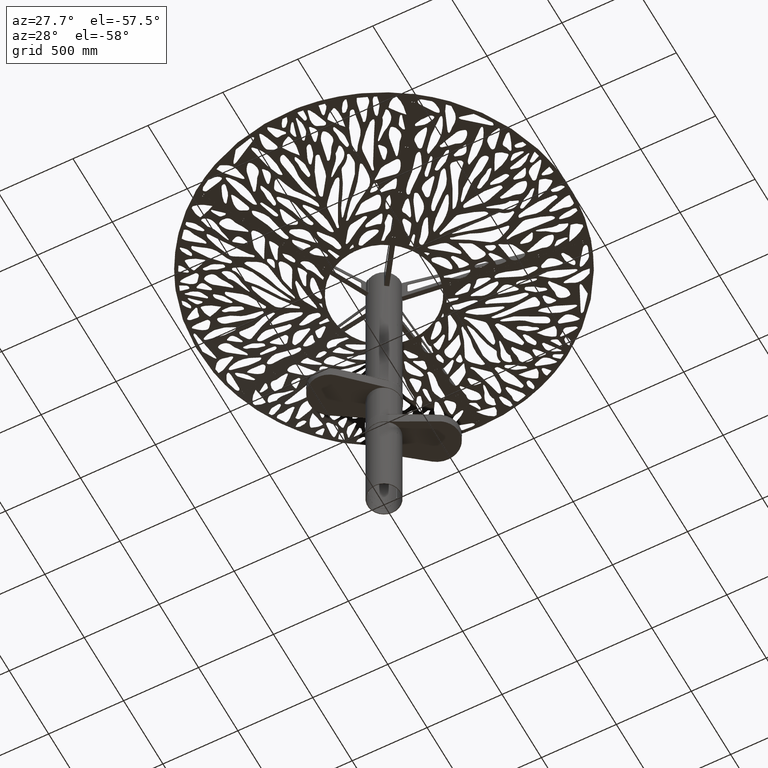
[diagram: clean part render]
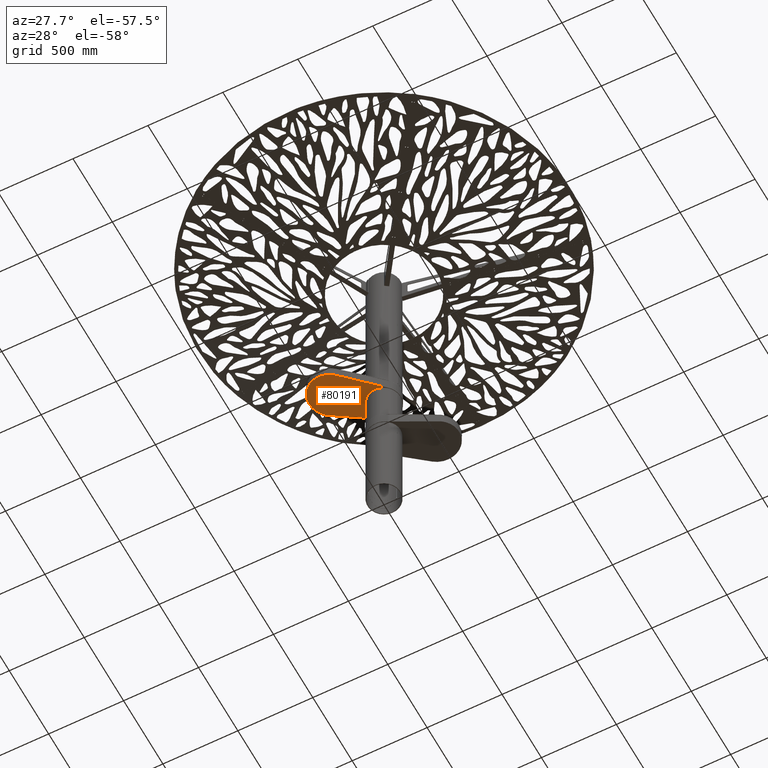
[diagram: same view with one face highlighted and labeled with its STEP entity id]
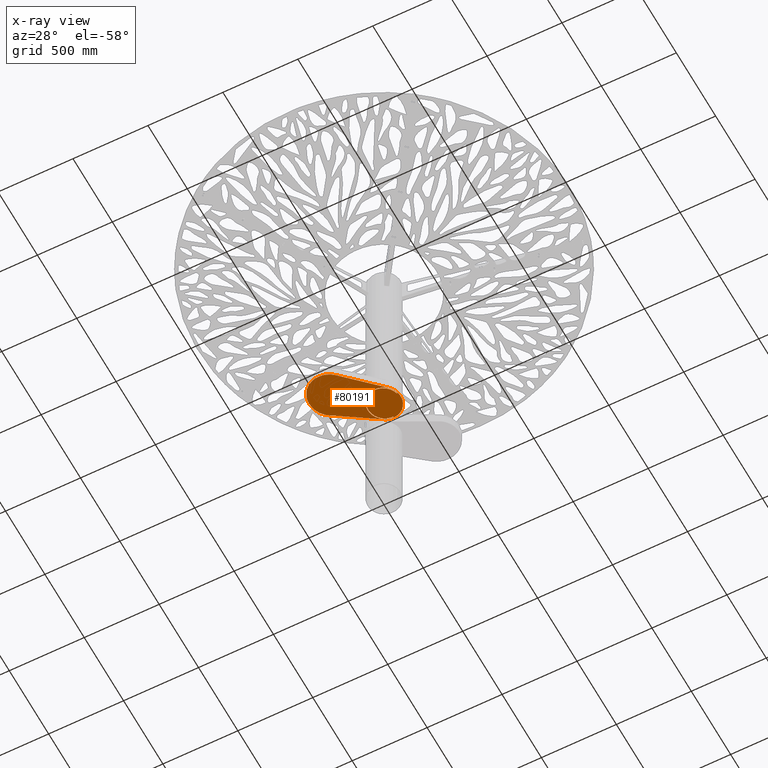
[diagram: x-ray of the same camera — body ghosted, the highlighted face saturated]
A machine part, auxiliary view. The second image highlights one B-rep face of the part: STEP entity #80191.
The next image is the same camera in x-ray: the body ghosted, the highlighted face saturated — about 0% of this face is hidden behind the body in this view.
In plain terms, the highlighted planar face has unit normal (-0.057, -0.0408, -0.9975).
Its self-contained STEP definition (entity closure, byte-faithful):
#350 =( BOUNDED_CURVE ( )  B_SPLINE_CURVE ( 3, ( #35909, #22765, #51425, #44363 ),
 .UNSPECIFIED., .F., .F. ) 
 B_SPLINE_CURVE_WITH_KNOTS ( ( 4, 4 ),
 ( 4.805927462431095698, 5.367763649027797790 ),
 .UNSPECIFIED. ) 
 CURVE ( )  GEOMETRIC_REPRESENTATION_ITEM ( )  RATIONAL_B_SPLINE_CURVE ( ( 1.000000000000000000, 0.9738675420286508899, 0.9738675420286508899, 1.000000000000000000 ) ) 
 REPRESENTATION_ITEM ( '' )  );
#353 = ORIENTED_EDGE ( 'NONE', *, *, #89418, .T. ) ;
#1625 = CARTESIAN_POINT ( 'NONE',  ( 12.92584310147885951, -146.6037148960195964, 1050.583754877546880 ) ) ;
#2032 = CARTESIAN_POINT ( 'NONE',  ( 109.5500000000000256, -104.2045133374145252, 1057.380908748786851 ) ) ;
#2080 = CARTESIAN_POINT ( 'NONE',  ( -10.92212245450615882, 112.0187919105038787, 1048.939150850742635 ) ) ;
#2889 = ORIENTED_EDGE ( 'NONE', *, *, #78142, .F. ) ;
#2923 = DIRECTION ( 'NONE',  ( 0.07011946746707101163, 0.0001223816819698559863, -0.9975385933911822267 ) ) ;
#3578 = DIRECTION ( 'NONE',  ( -0.09657596810099955409, 0.9953032908268499845, -0.006666457424863603265 ) ) ;
#3583 = CARTESIAN_POINT ( 'NONE',  ( 1.494106088711271152, -109.6516675125040194, 1049.784723077543731 ) ) ;
#4257 = B_SPLINE_CURVE_WITH_KNOTS ( 'NONE', 3,
 ( #2080, #30684, #44816, #8205 ),
 .UNSPECIFIED., .F., .F.,
 ( 4, 4 ),
 ( 0.000000000000000000, 1.000000000000000000 ),
 .UNSPECIFIED. ) ;
#4624 = EDGE_CURVE ( 'NONE', #55194, #73368, #7489, .T. ) ;
#5004 = ORIENTED_EDGE ( 'NONE', *, *, #72107, .T. ) ;
#7489 =( BOUNDED_CURVE ( )  B_SPLINE_CURVE ( 3, ( #73099, #87257, #21919, #23296 ),
 .UNSPECIFIED., .F., .F. ) 
 B_SPLINE_CURVE_WITH_KNOTS ( ( 4, 4 ),
 ( 0.8859516306433542487, 3.143337982841786893 ),
 .UNSPECIFIED. ) 
 CURVE ( )  GEOMETRIC_REPRESENTATION_ITEM ( )  RATIONAL_B_SPLINE_CURVE ( ( 1.000000000000000000, 0.6185609004910936903, 0.6185609004910936903, 1.000000000000000000 ) ) 
 REPRESENTATION_ITEM ( '' )  );
#7953 = EDGE_CURVE ( 'NONE', #87108, #56682, #40212, .T. ) ;
#8205 = CARTESIAN_POINT ( 'NONE',  ( -10.71230744179788985, 112.0392494178781533, 1048.953901779360876 ) ) ;
#8753 = DIRECTION ( 'NONE',  ( 0.9928526288767784980, 0.09680570381917912026, 0.06980195585041709672 ) ) ;
#10041 = EDGE_CURVE ( 'NONE', #15611, #54785, #80761, .T. ) ;
#10587 = EDGE_CURVE ( 'NONE', #51226, #34338, #47000, .T. ) ;
#10639 = CARTESIAN_POINT ( 'NONE',  ( 1.497499500859786448, -109.6152089393120264, 1049.784966081792618 ) ) ;
#11542 = CARTESIAN_POINT ( 'NONE',  ( -9.329682480214300355, 109.1520019276751015, 1049.050735706839077 ) ) ;
#12401 =( BOUNDED_CURVE ( )  B_SPLINE_CURVE ( 3, ( #48669, #73513, #51913, #38239 ),
 .UNSPECIFIED., .F., .F. ) 
 B_SPLINE_CURVE_WITH_KNOTS ( ( 4, 4 ),
 ( 0.001745329251994040109, 1.475346292235222734 ),
 .UNSPECIFIED. ) 
 CURVE ( )  GEOMETRIC_REPRESENTATION_ITEM ( )  RATIONAL_B_SPLINE_CURVE ( ( 1.000000000000000000, 0.8270814479226041849, 0.8270814479226041849, 1.000000000000000000 ) ) 
 REPRESENTATION_ITEM ( '' )  );
#13130 = EDGE_CURVE ( 'NONE', #73368, #51226, #33217, .T. ) ;
#13528 = VECTOR ( 'NONE', #21415, 1000.000000000000114 ) ;
#13730 = ORIENTED_EDGE ( 'NONE', *, *, #4624, .T. ) ;
#13867 = CARTESIAN_POINT ( 'NONE',  ( -10.71230744179788985, 112.0392494178781533, 1048.953901779360876 ) ) ;
#14717 = VERTEX_POINT ( 'NONE', #28777 ) ;
#15611 = VERTEX_POINT ( 'NONE', #38485 ) ;
#15708 = CARTESIAN_POINT ( 'NONE',  ( 105.5499999999999972, -9.758621395310865375E-16, 1057.112522996063944 ) ) ;
#16633 = CARTESIAN_POINT ( 'NONE',  ( 462.3280933744170511, 7.557399195154646421, 1082.192269247791728 ) ) ;
#16834 = CARTESIAN_POINT ( 'NONE',  ( -112.5500000000000256, -2.424243379114489848E-17, 1041.781731830803437 ) ) ;
#17552 = CARTESIAN_POINT ( 'NONE',  ( 319.6057065265956112, -142.4423281570702216, 1072.141555373912070 ) ) ;
#17987 = ORIENTED_EDGE ( 'NONE', *, *, #10041, .T. ) ;
#18005 = CARTESIAN_POINT ( 'NONE',  ( 406.6121758154172880, -142.3777163120668661, 1078.257464312621551 ) ) ;
#18788 = CARTESIAN_POINT ( 'NONE',  ( -9.620169550033752515, 112.1457356920790289, 1049.030683930796840 ) ) ;
#19007 = VERTEX_POINT ( 'NONE', #83239 ) ;
#19552 = LINE ( 'NONE', #48214, #27718 ) ;
#20021 = EDGE_CURVE ( 'NONE', #69536, #15611, #34881, .T. ) ;
#21415 = DIRECTION ( 'NONE',  ( -0.09267323191675787275, -0.9956744600935240053, -0.006636384827020703168 ) ) ;
#21919 = CARTESIAN_POINT ( 'NONE',  ( 105.5499999999999119, 102.8212135446376152, 1057.125137478490160 ) ) ;
#22043 = CARTESIAN_POINT ( 'NONE',  ( 0.05284102751732186465, -112.5499875958492026, 1049.683057397111952 ) ) ;
#22235 = VECTOR ( 'NONE', #8753, 999.9999999999998863 ) ;
#22656 = CARTESIAN_POINT ( 'NONE',  ( -66.90852046242771678, 81.63364741042084916, 1045.000000000001137 ) ) ;
#22765 = CARTESIAN_POINT ( 'NONE',  ( -31.11916842763947244, 107.0750314818301518, 1047.518843763735276 ) ) ;
#22956 = CARTESIAN_POINT ( 'NONE',  ( -65.90196074805079718, -112.5809526769653672, 1045.046926627237781 ) ) ;
#23296 = CARTESIAN_POINT ( 'NONE',  ( 105.5499999999999972, -9.758621395310865375E-16, 1057.112522996063944 ) ) ;
#23698 = ORIENTED_EDGE ( 'NONE', *, *, #49705, .T. ) ;
#24023 = LINE ( 'NONE', #44239, #38944 ) ;
#24768 = CARTESIAN_POINT ( 'NONE',  ( 1.494106088711271152, -109.6516675125040194, 1049.784723077543731 ) ) ;
#24866 = EDGE_CURVE ( 'NONE', #34338, #89141, #30222, .T. ) ;
#25165 = LINE ( 'NONE', #11542, #62779 ) ;
#25170 = CARTESIAN_POINT ( 'NONE',  ( 1.498826621511934354, -109.5420554575623697, 1049.785068343138164 ) ) ;
#25702 = ORIENTED_EDGE ( 'NONE', *, *, #54804, .T. ) ;
#26560 = EDGE_CURVE ( 'NONE', #65056, #43592, #44443, .T. ) ;
#27053 = DIRECTION ( 'NONE',  ( -0.9932245125691692156, 0.09291046518109309649, -0.06980482140632690569 ) ) ;
#27718 = VECTOR ( 'NONE', #84414, 1000.000000000000114 ) ;
#27827 = ORIENTED_EDGE ( 'NONE', *, *, #90602, .T. ) ;
#27948 = EDGE_CURVE ( 'NONE', #28133, #65056, #25165, .T. ) ;
#28133 = VERTEX_POINT ( 'NONE', #47239 ) ;
#28777 = CARTESIAN_POINT ( 'NONE',  ( -10.42255373769118343, 109.0530736549178670, 1048.973902932548071 ) ) ;
#29256 = CARTESIAN_POINT ( 'NONE',  ( -66.61425165630772938, -86.96978772119727807, 1045.000000000001137 ) ) ;
#30134 = CARTESIAN_POINT ( 'NONE',  ( 175.6524035702720141, -267.4438362176629767, 1062.007384219830101 ) ) ;
#30222 =( BOUNDED_CURVE ( )  B_SPLINE_CURVE ( 3, ( #29256, #31096, #2032, #57962 ),
 .UNSPECIFIED., .F., .F. ) 
 B_SPLINE_CURVE_WITH_KNOTS ( ( 4, 4 ),
 ( 0.9154216581517887752, 3.139847324337799783 ),
 .UNSPECIFIED. ) 
 CURVE ( )  GEOMETRIC_REPRESENTATION_ITEM ( )  RATIONAL_B_SPLINE_CURVE ( ( 1.000000000000000000, 0.6284522653300899098, 0.6284522653300899098, 1.000000000000000000 ) ) 
 REPRESENTATION_ITEM ( '' )  );
#30684 = CARTESIAN_POINT ( 'NONE',  ( -10.85218411693688090, 112.0256110796287601, 1048.944067826951596 ) ) ;
#31096 = CARTESIAN_POINT ( 'NONE',  ( 16.11184970878220923, -150.3336003654839601, 1050.807249605941934 ) ) ;
#31150 = CARTESIAN_POINT ( 'NONE',  ( -66.62315822596133330, -81.86670439194757876, 1045.000000000001137 ) ) ;
#31585 =( BOUNDED_CURVE ( )  B_SPLINE_CURVE ( 3, ( #81021, #74869, #73479, #16633, #81953, #18005, #17552 ),
 .UNSPECIFIED., .F., .T. ) 
 B_SPLINE_CURVE_WITH_KNOTS ( ( 4, 3, 4 ),
 ( 1.475346292235227175, 3.094368996171756425, 4.713391700108285676 ),
 .UNSPECIFIED. ) 
 CURVE ( )  GEOMETRIC_REPRESENTATION_ITEM ( )  RATIONAL_B_SPLINE_CURVE ( ( 1.000000000000000000, 0.7932348480811214353, 0.7932348480811214353, 1.000000000000000000, 0.7932348480811214353, 0.7932348480811214353, 1.000000000000000000 ) ) 
 REPRESENTATION_ITEM ( '' )  );
#31754 = EDGE_CURVE ( 'NONE', #89141, #28133, #35138, .T. ) ;
#32417 = ORIENTED_EDGE ( 'NONE', *, *, #27948, .T. ) ;
#32650 = CARTESIAN_POINT ( 'NONE',  ( 1.499073011793415011, -109.5786715876656814, 1049.785081170323792 ) ) ;
#33217 =( BOUNDED_CURVE ( )  B_SPLINE_CURVE ( 3, ( #15708, #44355, #1625, #31150 ),
 .UNSPECIFIED., .F., .F. ) 
 B_SPLINE_CURVE_WITH_KNOTS ( ( 4, 4 ),
 ( 3.143337982841786893, 5.397233676536233205 ),
 .UNSPECIFIED. ) 
 CURVE ( )  GEOMETRIC_REPRESENTATION_ITEM ( )  RATIONAL_B_SPLINE_CURVE ( ( 1.000000000000000000, 0.6196121472378381956, 0.6196121472378381956, 1.000000000000000000 ) ) 
 REPRESENTATION_ITEM ( '' )  );
#34199 = CARTESIAN_POINT ( 'NONE',  ( 109.5499999999999403, 68.59886994913156855, 1057.402108899675113 ) ) ;
#34338 = VERTEX_POINT ( 'NONE', #48357 ) ;
#34881 = LINE ( 'NONE', #78153, #45413 ) ;
#35138 =( BOUNDED_CURVE ( )  B_SPLINE_CURVE ( 3, ( #82701, #34199, #47413, #55851 ),
 .UNSPECIFIED., .F., .F. ) 
 B_SPLINE_CURVE_WITH_KNOTS ( ( 4, 4 ),
 ( 3.139847324337799783, 4.795910627427660167 ),
 .UNSPECIFIED. ) 
 CURVE ( )  GEOMETRIC_REPRESENTATION_ITEM ( )  RATIONAL_B_SPLINE_CURVE ( ( 1.000000000000000000, 0.7842179718934527699, 0.7842179718934527699, 1.000000000000000000 ) ) 
 REPRESENTATION_ITEM ( '' )  );
#35588 = B_SPLINE_CURVE_WITH_KNOTS ( 'NONE', 3,
 ( #3583, #10639, #32650, #25170 ),
 .UNSPECIFIED., .F., .F.,
 ( 4, 4 ),
 ( 0.000000000000000000, 1.000000000000000000 ),
 .UNSPECIFIED. ) ;
#35909 = CARTESIAN_POINT ( 'NONE',  ( -10.42255373769118343, 109.0530736549178670, 1048.973902932548071 ) ) ;
#36073 = EDGE_CURVE ( 'NONE', #14717, #19007, #350, .T. ) ;
#36883 = CARTESIAN_POINT ( 'NONE',  ( 0.4015591248854097350, -109.5494660008049550, 1049.707937773999220 ) ) ;
#38239 = CARTESIAN_POINT ( 'NONE',  ( -10.92212245450615882, 112.0187919105038787, 1048.939150850742635 ) ) ;
#38402 = DIRECTION ( 'NONE',  ( 0.09657596810064132675, -0.9953032908268841794, 0.006666457424940674427 ) ) ;
#38435 = CARTESIAN_POINT ( 'NONE',  ( 305.6224497487897338, 142.8827078744953099, 1071.193642213296698 ) ) ;
#38485 = CARTESIAN_POINT ( 'NONE',  ( 0.05284102751732186465, -112.5499875958492026, 1049.683057397111952 ) ) ;
#38882 = EDGE_CURVE ( 'NONE', #19007, #55194, #24023, .T. ) ;
#38944 = VECTOR ( 'NONE', #73362, 1000.000000000000000 ) ;
#40212 = LINE ( 'NONE', #41138, #92425 ) ;
#41138 = CARTESIAN_POINT ( 'NONE',  ( 319.6057065265948154, -142.4423281570699658, 1072.141555373912297 ) ) ;
#41599 = ORIENTED_EDGE ( 'NONE', *, *, #20021, .T. ) ;
#42071 = VECTOR ( 'NONE', #38402, 1000.000000000000227 ) ;
#43476 = ORIENTED_EDGE ( 'NONE', *, *, #38882, .T. ) ;
#43592 = VERTEX_POINT ( 'NONE', #38435 ) ;
#44239 = CARTESIAN_POINT ( 'NONE',  ( -66.91742703208130649, 86.73673073967053426, 1045.000000000003411 ) ) ;
#44355 = CARTESIAN_POINT ( 'NONE',  ( 105.5500000000000256, -102.5618064446869795, 1057.099940338649503 ) ) ;
#44363 = CARTESIAN_POINT ( 'NONE',  ( -66.91742703208122123, 86.73673073967049163, 1045.000000000001137 ) ) ;
#44443 = LINE ( 'NONE', #73105, #22235 ) ;
#44478 = VERTEX_POINT ( 'NONE', #13867 ) ;
#44816 = CARTESIAN_POINT ( 'NONE',  ( -10.78224577936734718, 112.0324302487534425, 1048.948984803156236 ) ) ;
#45413 = VECTOR ( 'NONE', #63567, 1000.000000000000114 ) ;
#45476 = CARTESIAN_POINT ( 'NONE',  ( -10.71230744179780814, 112.0392494178781249, 1048.953901779361104 ) ) ;
#47000 = LINE ( 'NONE', #54512, #74478 ) ;
#47239 = CARTESIAN_POINT ( 'NONE',  ( -9.329682480214003704, 109.1520019276714351, 1049.050735706839532 ) ) ;
#47413 = CARTESIAN_POINT ( 'NONE',  ( 59.01996594446596589, 114.9941349731017226, 1053.855919136257398 ) ) ;
#48214 = CARTESIAN_POINT ( 'NONE',  ( 1.214230642258770754, -112.6586289432949570, 1049.764681031662121 ) ) ;
#48357 = CARTESIAN_POINT ( 'NONE',  ( -66.61425165630772938, -86.96978772119727807, 1045.000000000001137 ) ) ;
#48669 = CARTESIAN_POINT ( 'NONE',  ( -112.5500000000000256, -2.424243379114489848E-17, 1041.781731830803437 ) ) ;
#49301 = DIRECTION ( 'NONE',  ( 0.001745328365893505582, -0.9999984769132876927, 0.000000000000000000 ) ) ;
#49705 = EDGE_CURVE ( 'NONE', #44478, #14717, #80746, .T. ) ;
#50076 = CARTESIAN_POINT ( 'NONE',  ( 0.4015591248850659545, -109.5494660008042018, 1049.707937773999674 ) ) ;
#50486 = CARTESIAN_POINT ( 'NONE',  ( -112.5500000000000256, -2.424243379114489848E-17, 1041.781731830803437 ) ) ;
#51226 = VERTEX_POINT ( 'NONE', #81691 ) ;
#51425 = CARTESIAN_POINT ( 'NONE',  ( -50.45611479740498595, 99.43664058089349567, 1046.158664628809902 ) ) ;
#51913 = CARTESIAN_POINT ( 'NONE',  ( -71.59156807419867619, 106.1033637666733114, 1044.673818976260691 ) ) ;
#52471 = VERTEX_POINT ( 'NONE', #24768 ) ;
#54512 = CARTESIAN_POINT ( 'NONE',  ( -66.62315822596140436, -81.86670439194753612, 1045.000000000003411 ) ) ;
#54785 = VERTEX_POINT ( 'NONE', #50486 ) ;
#54804 = EDGE_CURVE ( 'NONE', #90323, #44478, #4257, .T. ) ;
#54931 = ORIENTED_EDGE ( 'NONE', *, *, #31754, .T. ) ;
#55084 = ORIENTED_EDGE ( 'NONE', *, *, #7953, .T. ) ;
#55194 = VERTEX_POINT ( 'NONE', #22656 ) ;
#55851 = CARTESIAN_POINT ( 'NONE',  ( -9.329682480214003704, 109.1520019276714351, 1049.050735706839532 ) ) ;
#56319 = CARTESIAN_POINT ( 'NONE',  ( 105.5499999999999972, -9.758621395310865375E-16, 1057.112522996063944 ) ) ;
#56670 = CARTESIAN_POINT ( 'NONE',  ( 0.7673273283637670472, -109.5488276142081219, 1049.733648608589647 ) ) ;
#56682 = VERTEX_POINT ( 'NONE', #88759 ) ;
#57962 = CARTESIAN_POINT ( 'NONE',  ( 109.5499999999999972, 1.339176325086810978E-14, 1057.393692939489483 ) ) ;
#58008 = EDGE_LOOP ( 'NONE', ( #17987, #353, #25702, #23698, #59991, #43476, #13730, #62764, #85851, #68781, #54931, #32417, #62582, #27827, #55084, #71526, #74068, #2889, #5004, #41599 ) ) ;
#58118 = VERTEX_POINT ( 'NONE', #92522 ) ;
#59139 = CARTESIAN_POINT ( 'NONE',  ( -112.5500000000000256, -65.95480904445658155, 1041.773640253677058 ) ) ;
#59991 = ORIENTED_EDGE ( 'NONE', *, *, #36073, .T. ) ;
#60232 = PLANE ( 'NONE',  #74100 ) ;
#62582 = ORIENTED_EDGE ( 'NONE', *, *, #26560, .T. ) ;
#62764 = ORIENTED_EDGE ( 'NONE', *, *, #13130, .T. ) ;
#62779 = VECTOR ( 'NONE', #3578, 1000.000000000000227 ) ;
#63567 = DIRECTION ( 'NONE',  ( -0.9932245125691693266, 0.09291046517969396568, -0.06980482140818712600 ) ) ;
#65056 = VERTEX_POINT ( 'NONE', #18788 ) ;
#66242 = CARTESIAN_POINT ( 'NONE',  ( 109.5499999999999972, 1.339176325086810978E-14, 1057.393692939489483 ) ) ;
#68781 = ORIENTED_EDGE ( 'NONE', *, *, #24866, .T. ) ;
#69536 = VERTEX_POINT ( 'NONE', #80596 ) ;
#71228 = CARTESIAN_POINT ( 'NONE',  ( 1.133086218468299711, -109.5463573971593547, 1049.759359013254425 ) ) ;
#71526 = ORIENTED_EDGE ( 'NONE', *, *, #77835, .T. ) ;
#72107 = EDGE_CURVE ( 'NONE', #58118, #69536, #78749, .T. ) ;
#73099 = CARTESIAN_POINT ( 'NONE',  ( -66.90852046242771678, 81.63364741042084916, 1045.000000000001137 ) ) ;
#73105 = CARTESIAN_POINT ( 'NONE',  ( -9.620169550033766726, 112.1457356920790858, 1049.030683930796840 ) ) ;
#73362 = DIRECTION ( 'NONE',  ( 0.001745328365885366042, -0.9999984769132876927, 0.000000000000000000 ) ) ;
#73368 = VERTEX_POINT ( 'NONE', #56319 ) ;
#73479 = CARTESIAN_POINT ( 'NONE',  ( 458.0691761611444690, 94.45959420176932042, 1081.903560848841153 ) ) ;
#73513 = CARTESIAN_POINT ( 'NONE',  ( -112.5500000000000398, 60.95714824305368751, 1041.789210276629774 ) ) ;
#74068 = ORIENTED_EDGE ( 'NONE', *, *, #84502, .T. ) ;
#74100 = AXIS2_PLACEMENT_3D ( 'NONE', #30134, #2923, #74781 ) ;
#74321 = FACE_OUTER_BOUND ( 'NONE', #58008, .T. ) ;
#74478 = VECTOR ( 'NONE', #49301, 1000.000000000000000 ) ;
#74781 = DIRECTION ( 'NONE',  ( -0.9975386008613877920, 0.000000000000000000, -0.07011946799217032289 ) ) ;
#74869 = CARTESIAN_POINT ( 'NONE',  ( 392.2182939561636204, 151.3260270565117764, 1077.281715224727350 ) ) ;
#77169 =( BOUNDED_CURVE ( )  B_SPLINE_CURVE ( 3, ( #50076, #56670, #71228, #78756 ),
 .UNSPECIFIED., .F., .F. ) 
 B_SPLINE_CURVE_WITH_KNOTS ( ( 4, 4 ),
 ( 0.000000000000000000, 1.000000000000000000 ),
 .UNSPECIFIED. ) 
 CURVE ( )  GEOMETRIC_REPRESENTATION_ITEM ( )  RATIONAL_B_SPLINE_CURVE ( ( 0.4999999999999997224, 0.4999999999999997224, 0.5000041804181561966, 0.5000125412544690340 ) ) 
 REPRESENTATION_ITEM ( '' )  );
#77835 = EDGE_CURVE ( 'NONE', #56682, #52471, #19552, .T. ) ;
#78142 = EDGE_CURVE ( 'NONE', #58118, #82687, #77169, .T. ) ;
#78153 = CARTESIAN_POINT ( 'NONE',  ( 0.1216836784324928922, -112.5564274315959636, 1049.687895728115336 ) ) ;
#78749 = LINE ( 'NONE', #36883, #13528 ) ;
#78756 = CARTESIAN_POINT ( 'NONE',  ( 1.498826621511934354, -109.5420554575623697, 1049.785068343138164 ) ) ;
#80191 = ADVANCED_FACE ( 'NONE', ( #74321 ), #60232, .T. ) ;
#80596 = CARTESIAN_POINT ( 'NONE',  ( 0.1216836784324610427, -112.5564274315962479, 1049.687895728115336 ) ) ;
#80746 = LINE ( 'NONE', #45476, #42071 ) ;
#80761 =( BOUNDED_CURVE ( )  B_SPLINE_CURVE ( 3, ( #22043, #22956, #59139, #16834 ),
 .UNSPECIFIED., .F., .F. ) 
 B_SPLINE_CURVE_WITH_KNOTS ( ( 4, 4 ),
 ( 4.713664820258998134, 6.284930636431580453 ),
 .UNSPECIFIED. ) 
 CURVE ( )  GEOMETRIC_REPRESENTATION_ITEM ( )  RATIONAL_B_SPLINE_CURVE ( ( 1.000000000000000000, 0.8046271814294398972, 0.8046271814294398972, 1.000000000000000000 ) ) 
 REPRESENTATION_ITEM ( '' )  );
#81021 = CARTESIAN_POINT ( 'NONE',  ( 305.6224497487897338, 142.8827078744953099, 1071.193642213296698 ) ) ;
#81691 = CARTESIAN_POINT ( 'NONE',  ( -66.62315822596133330, -81.86670439194757876, 1045.000000000001137 ) ) ;
#81904 = CARTESIAN_POINT ( 'NONE',  ( 1.498826621511934354, -109.5420554575623697, 1049.785068343138164 ) ) ;
#81953 = CARTESIAN_POINT ( 'NONE',  ( 466.5870105876895764, -79.34479581146001692, 1082.480977646742076 ) ) ;
#82687 = VERTEX_POINT ( 'NONE', #81904 ) ;
#82701 = CARTESIAN_POINT ( 'NONE',  ( 109.5499999999999972, 1.339176325086810978E-14, 1057.393692939489483 ) ) ;
#83239 = CARTESIAN_POINT ( 'NONE',  ( -66.91742703208122123, 86.73673073967049163, 1045.000000000001137 ) ) ;
#84414 = DIRECTION ( 'NONE',  ( 0.09267323191653915881, 0.9956744600935443223, 0.006636384827020837610 ) ) ;
#84502 = EDGE_CURVE ( 'NONE', #52471, #82687, #35588, .T. ) ;
#85851 = ORIENTED_EDGE ( 'NONE', *, *, #10587, .T. ) ;
#87108 = VERTEX_POINT ( 'NONE', #90404 ) ;
#87257 = CARTESIAN_POINT ( 'NONE',  ( 12.61465047849614862, 146.8123804319558587, 1050.597877733898940 ) ) ;
#88759 = CARTESIAN_POINT ( 'NONE',  ( 1.214230642258724568, -112.6586289432952412, 1049.764681031662121 ) ) ;
#89141 = VERTEX_POINT ( 'NONE', #66242 ) ;
#89418 = EDGE_CURVE ( 'NONE', #54785, #90323, #12401, .T. ) ;
#90323 = VERTEX_POINT ( 'NONE', #91574 ) ;
#90404 = CARTESIAN_POINT ( 'NONE',  ( 319.6057065265956112, -142.4423281570702216, 1072.141555373912070 ) ) ;
#90602 = EDGE_CURVE ( 'NONE', #43592, #87108, #31585, .T. ) ;
#91574 = CARTESIAN_POINT ( 'NONE',  ( -10.92212245450615882, 112.0187919105038787, 1048.939150850742635 ) ) ;
#92425 = VECTOR ( 'NONE', #27053, 1000.000000000000114 ) ;
#92522 = CARTESIAN_POINT ( 'NONE',  ( 0.4015591248850659545, -109.5494660008042018, 1049.707937773999674 ) ) ;